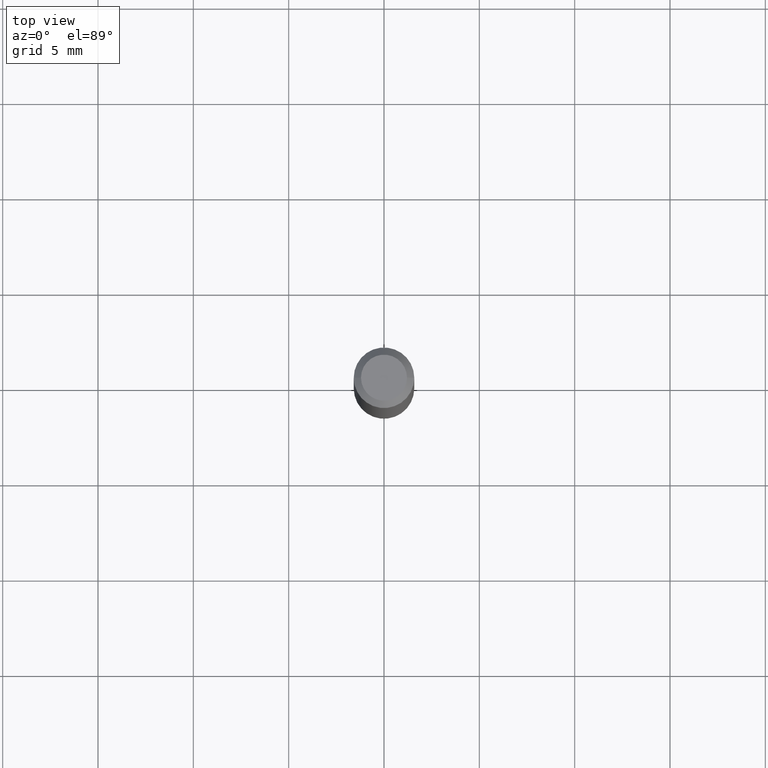
[diagram: clean part render]
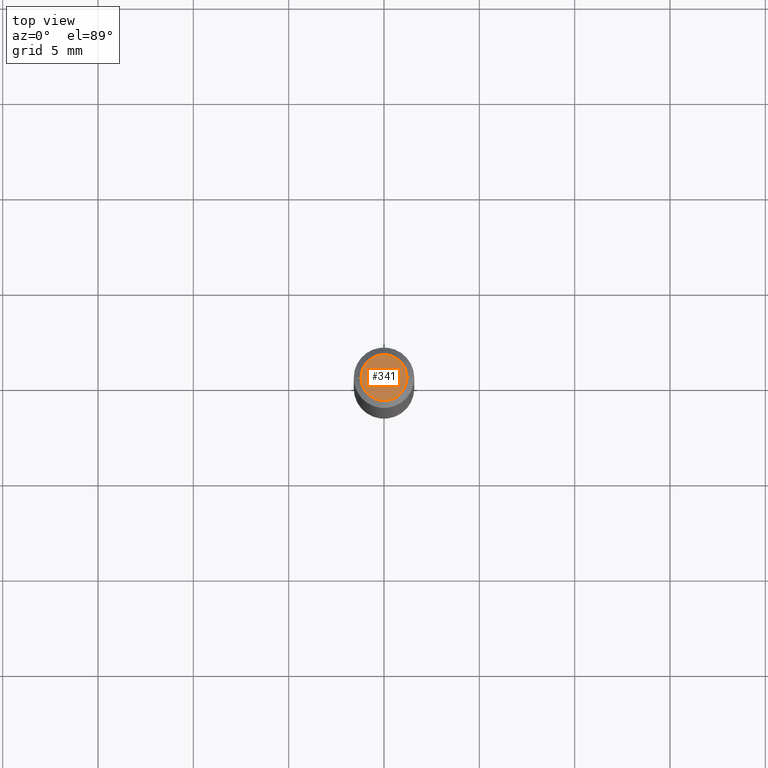
[diagram: same view with one face highlighted and labeled with its STEP entity id]
A machine part, top view. The second image highlights one B-rep face of the part: STEP entity #341.
In plain terms, the highlighted planar face has unit normal (0, -0, -1).
Its self-contained STEP definition (entity closure, byte-faithful):
#27 = DIRECTION ( 'NONE',  ( 2.438088387897960049E-29, -3.491481338843145188E-15, -1.000000000000000000 ) ) ;
#28 = CARTESIAN_POINT ( 'NONE',  ( 0.04749999999999999362, -4.035134999187569255E-16, 4.958922291554157852E-16 ) ) ;
#36 = ORIENTED_EDGE ( 'NONE', *, *, #274, .T. ) ;
#38 = EDGE_CURVE ( 'NONE', #291, #129, #116, .T. ) ;
#44 = CARTESIAN_POINT ( 'NONE',  ( -1.212688977629174450E-44, 1.731398464173454166E-30, 4.958922291554132214E-16 ) ) ;
#70 = ORIENTED_EDGE ( 'NONE', *, *, #38, .T. ) ;
#87 = DIRECTION ( 'NONE',  ( 1.000000000000000000, -6.982962677686267499E-15, 4.852736867747366768E-29 ) ) ;
#96 = EDGE_LOOP ( 'NONE', ( #70, #36 ) ) ;
#116 = CIRCLE ( 'NONE', #335, 0.04749999999999999362 ) ;
#124 = DIRECTION ( 'NONE',  ( -2.445468806185136597E-29, 3.491481338843145583E-15, 1.000000000000000000 ) ) ;
#129 = VERTEX_POINT ( 'NONE', #28 ) ;
#205 = AXIS2_PLACEMENT_3D ( 'NONE', #44, #437, #382 ) ;
#245 = DIRECTION ( 'NONE',  ( -1.000000000000000000, 6.982962677686265922E-15, -4.876176775795935793E-29 ) ) ;
#249 = CIRCLE ( 'NONE', #205, 0.04749999999999999362 ) ;
#267 = CARTESIAN_POINT ( 'NONE',  ( -1.212688977629174450E-44, 1.731398464173454166E-30, 4.958922291554132214E-16 ) ) ;
#274 = EDGE_CURVE ( 'NONE', #129, #291, #249, .T. ) ;
#291 = VERTEX_POINT ( 'NONE', #404 ) ;
#316 = FACE_OUTER_BOUND ( 'NONE', #96, .T. ) ;
#335 = AXIS2_PLACEMENT_3D ( 'NONE', #267, #124, #87 ) ;
#341 = ADVANCED_FACE ( 'NONE', ( #316 ), #385, .F. ) ;
#382 = DIRECTION ( 'NONE',  ( 1.000000000000000000, -6.982962677686267499E-15, 4.852736867747366768E-29 ) ) ;
#385 = PLANE ( 'NONE',  #455 ) ;
#404 = CARTESIAN_POINT ( 'NONE',  ( -0.04749999999999999362, 3.578768372314218888E-16, 4.958922291554107562E-16 ) ) ;
#412 = CARTESIAN_POINT ( 'NONE',  ( 3.316907271900976096E-16, 0.04749999999999999362, 8.210075098265718960E-17 ) ) ;
#437 = DIRECTION ( 'NONE',  ( -2.445468806185136597E-29, 3.491481338843145583E-15, 1.000000000000000000 ) ) ;
#455 = AXIS2_PLACEMENT_3D ( 'NONE', #412, #27, #245 ) ;